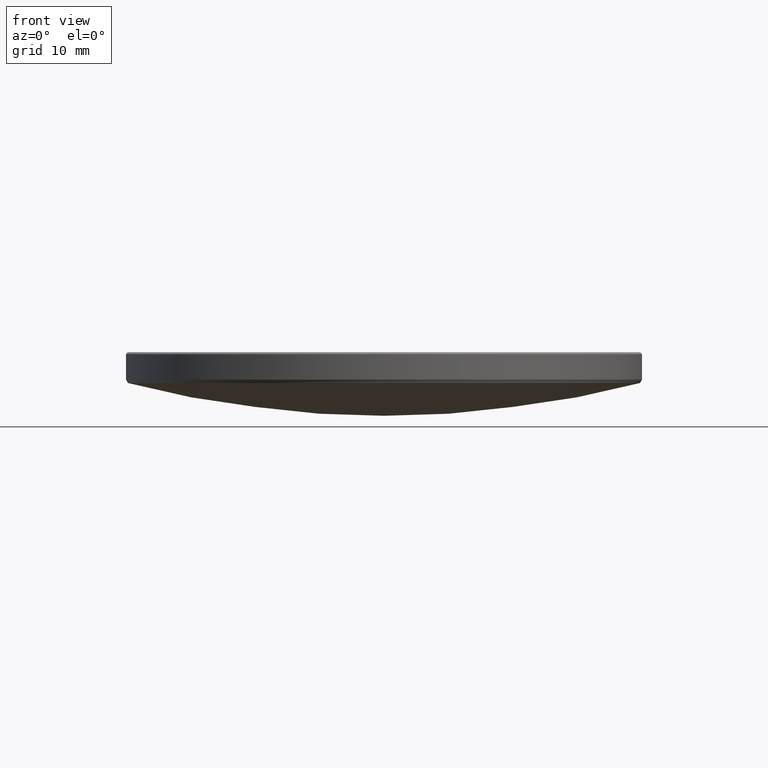
[diagram: clean part render]
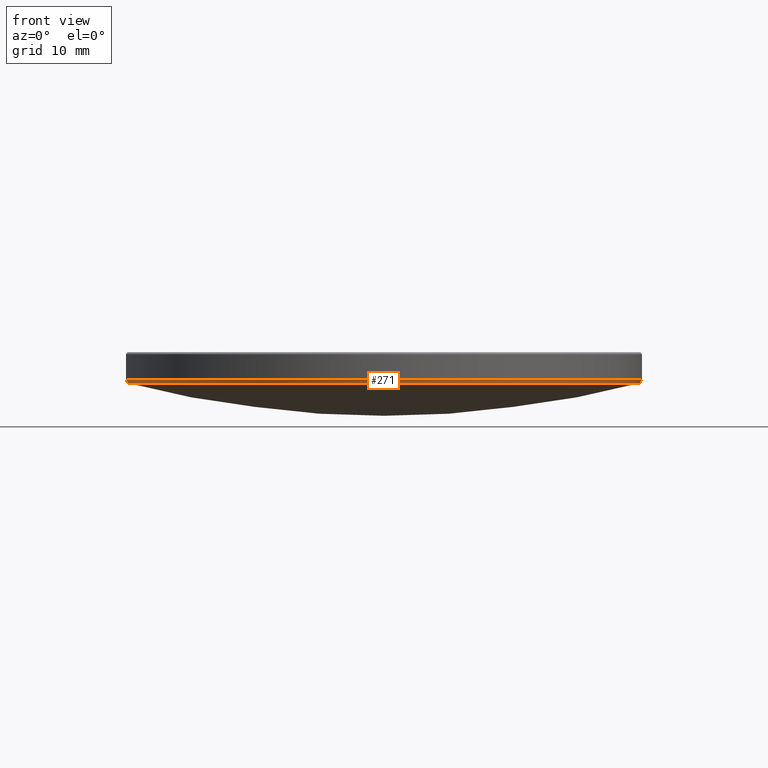
[diagram: same view with one face highlighted and labeled with its STEP entity id]
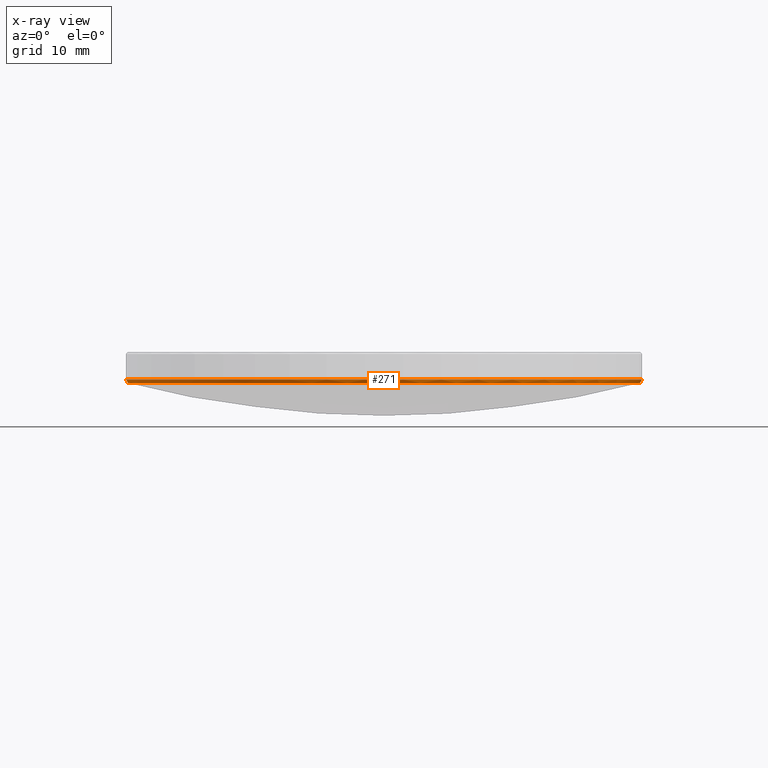
[diagram: x-ray of the same camera — body ghosted, the highlighted face saturated]
A machine part, front view. The second image highlights one B-rep face of the part: STEP entity #271.
The next image is the same camera in x-ray: the body ghosted, the highlighted face saturated — about 0% of this face is hidden behind the body in this view.
In plain terms, the highlighted conical surface has half-angle 30.298 deg.
Its self-contained STEP definition (entity closure, byte-faithful):
#6 = EDGE_CURVE ( 'NONE', #25, #98, #66, .T. ) ;
#25 = VERTEX_POINT ( 'NONE', #204 ) ;
#43 = AXIS2_PLACEMENT_3D ( 'NONE', #113, #183, #131 ) ;
#57 = VERTEX_POINT ( 'NONE', #206 ) ;
#64 = AXIS2_PLACEMENT_3D ( 'NONE', #118, #213, #138 ) ;
#66 = CIRCLE ( 'NONE', #256, 25.20669079081241648 ) ;
#71 = VERTEX_POINT ( 'NONE', #80 ) ;
#76 = VERTEX_POINT ( 'NONE', #210 ) ;
#80 = CARTESIAN_POINT ( 'NONE',  ( -25.39999999999999858, 0.000000000000000000, 13.28032383718598375 ) ) ;
#89 = EDGE_CURVE ( 'NONE', #71, #76, #320, .T. ) ;
#98 = VERTEX_POINT ( 'NONE', #236 ) ;
#108 = DIRECTION ( 'NONE',  ( -0.000000000000000000, -0.000000000000000000, 1.000000000000000000 ) ) ;
#113 = CARTESIAN_POINT ( 'NONE',  ( 0.000000000000000000, 0.000000000000000000, 13.28032383718598375 ) ) ;
#115 = VECTOR ( 'NONE', #116, 1000.000000000000000 ) ;
#116 = DIRECTION ( 'NONE',  ( -0.5044927953932116793, 6.178254870711972724E-17, 0.8634159017509134282 ) ) ;
#118 = CARTESIAN_POINT ( 'NONE',  ( 0.000000000000000000, 0.000000000000000000, 12.94948413701273182 ) ) ;
#121 = ORIENTED_EDGE ( 'NONE', *, *, #89, .F. ) ;
#126 = CARTESIAN_POINT ( 'NONE',  ( 0.000000000000000000, 0.000000000000000000, 12.94948413701273182 ) ) ;
#131 = DIRECTION ( 'NONE',  ( -1.000000000000000000, 0.000000000000000000, 0.000000000000000000 ) ) ;
#136 = LINE ( 'NONE', #242, #115 ) ;
#138 = DIRECTION ( 'NONE',  ( 1.000000000000000000, 0.000000000000000000, 0.000000000000000000 ) ) ;
#143 = LINE ( 'NONE', #287, #220 ) ;
#157 = DIRECTION ( 'NONE',  ( 1.000000000000000000, 0.000000000000000000, 0.000000000000000000 ) ) ;
#159 = CONICAL_SURFACE ( 'NONE', #197, 25.39999999999999858, 0.5287944249354518123 ) ;
#168 = EDGE_CURVE ( 'NONE', #98, #71, #136, .T. ) ;
#170 = EDGE_LOOP ( 'NONE', ( #175, #173, #221, #308, #121 ) ) ;
#173 = ORIENTED_EDGE ( 'NONE', *, *, #6, .F. ) ;
#175 = ORIENTED_EDGE ( 'NONE', *, *, #168, .F. ) ;
#177 = EDGE_CURVE ( 'NONE', #57, #25, #211, .T. ) ;
#179 = DIRECTION ( 'NONE',  ( 1.000000000000000000, 0.000000000000000000, 0.000000000000000000 ) ) ;
#183 = DIRECTION ( 'NONE',  ( -0.000000000000000000, -0.000000000000000000, 1.000000000000000000 ) ) ;
#197 = AXIS2_PLACEMENT_3D ( 'NONE', #293, #108, #157 ) ;
#204 = CARTESIAN_POINT ( 'NONE',  ( -3.086929319406547016E-15, -25.20669079081240582, 12.94948413701272472 ) ) ;
#206 = CARTESIAN_POINT ( 'NONE',  ( 25.20669079081242003, 0.000000000000000000, 12.94948413701273182 ) ) ;
#210 = CARTESIAN_POINT ( 'NONE',  ( 25.39999999999999858, 3.110602869834276865E-15, 13.28032383718598375 ) ) ;
#211 = CIRCLE ( 'NONE', #64, 25.20669079081241648 ) ;
#213 = DIRECTION ( 'NONE',  ( 0.000000000000000000, 0.000000000000000000, -1.000000000000000000 ) ) ;
#220 = VECTOR ( 'NONE', #251, 1000.000000000000000 ) ;
#221 = ORIENTED_EDGE ( 'NONE', *, *, #177, .F. ) ;
#233 = DIRECTION ( 'NONE',  ( 0.000000000000000000, 0.000000000000000000, -1.000000000000000000 ) ) ;
#236 = CARTESIAN_POINT ( 'NONE',  ( -25.20669079081242003, 3.098766094620413518E-15, 12.94948413701273182 ) ) ;
#242 = CARTESIAN_POINT ( 'NONE',  ( -25.39999999999999858, 3.110602869834276865E-15, 13.28032383718598375 ) ) ;
#251 = DIRECTION ( 'NONE',  ( 0.5044927953932116793, 0.000000000000000000, 0.8634159017509134282 ) ) ;
#256 = AXIS2_PLACEMENT_3D ( 'NONE', #126, #233, #179 ) ;
#268 = FACE_OUTER_BOUND ( 'NONE', #170, .T. ) ;
#271 = ADVANCED_FACE ( 'NONE', ( #268 ), #159, .T. ) ;
#287 = CARTESIAN_POINT ( 'NONE',  ( 25.39999999999999858, 0.000000000000000000, 13.28032383718598375 ) ) ;
#293 = CARTESIAN_POINT ( 'NONE',  ( 0.000000000000000000, 0.000000000000000000, 13.28032383718598375 ) ) ;
#308 = ORIENTED_EDGE ( 'NONE', *, *, #323, .T. ) ;
#320 = CIRCLE ( 'NONE', #43, 25.39999999999999858 ) ;
#323 = EDGE_CURVE ( 'NONE', #57, #76, #143, .T. ) ;